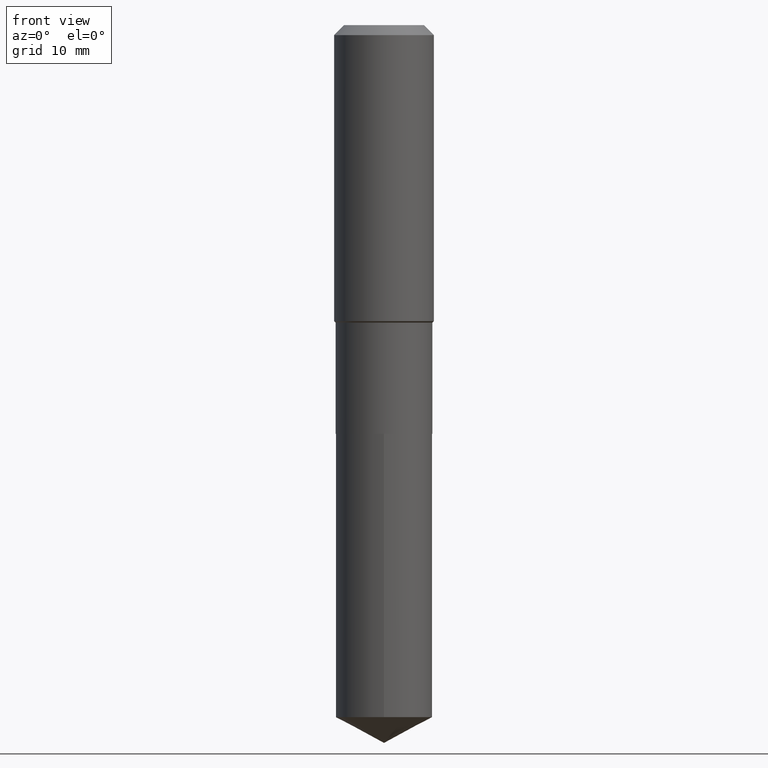
[diagram: clean part render]
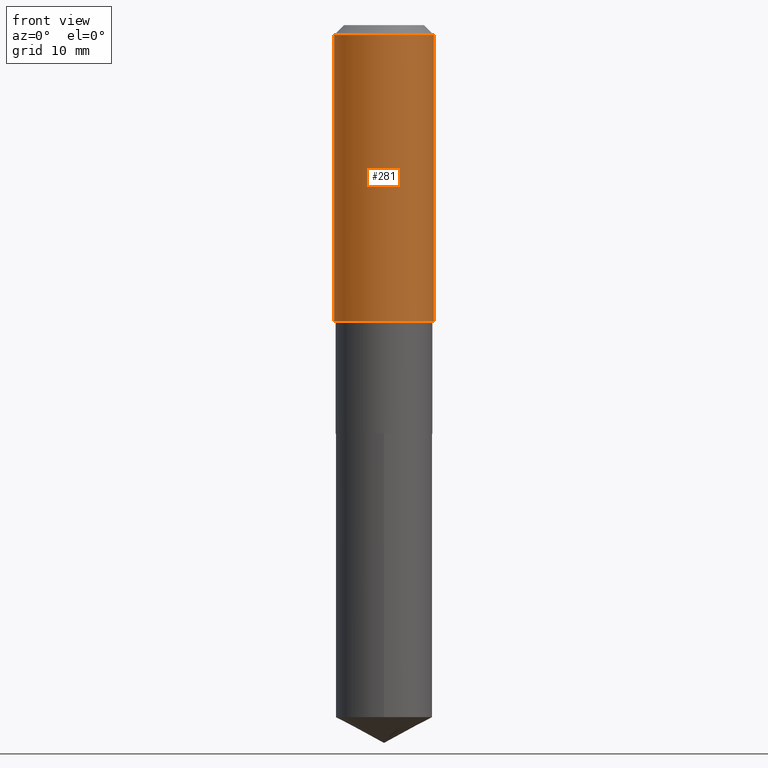
[diagram: same view with one face highlighted and labeled with its STEP entity id]
A machine part, front view. The second image highlights one B-rep face of the part: STEP entity #281.
In plain terms, the highlighted cylindrical surface (partial cylindrical patch) has radius 7.9997 mm, axis along (-0, 0, 1).
Its self-contained STEP definition (entity closure, byte-faithful):
#2 = VERTEX_POINT ( 'NONE', #220 ) ;
#12 = ORIENTED_EDGE ( 'NONE', *, *, #330, .F. ) ;
#20 = VECTOR ( 'NONE', #488, 39.37007874015748143 ) ;
#22 = DIRECTION ( 'NONE',  ( 1.000000000000000000, -6.982962677686265922E-15, 4.876176775795935232E-29 ) ) ;
#35 = VERTEX_POINT ( 'NONE', #244 ) ;
#63 = EDGE_CURVE ( 'NONE', #2, #35, #441, .T. ) ;
#69 = CYLINDRICAL_SURFACE ( 'NONE', #368, 0.3149500000000001743 ) ;
#92 = LINE ( 'NONE', #166, #163 ) ;
#99 = CARTESIAN_POINT ( 'NONE',  ( -0.3149500000000000077, -1.131669549400917718E-15, -0.06299000000000036514 ) ) ;
#125 = DIRECTION ( 'NONE',  ( -2.445468806185136877E-29, 3.491481338843145188E-15, 1.000000000000000000 ) ) ;
#142 = DIRECTION ( 'NONE',  ( 1.000000000000000000, -6.982962677686266711E-15, 0.000000000000000000 ) ) ;
#163 = VECTOR ( 'NONE', #125, 39.37007874015748143 ) ;
#166 = CARTESIAN_POINT ( 'NONE',  ( -0.3149500000000001743, 2.237854346276436774E-15, -1.549218606675783237E-29 ) ) ;
#180 = DIRECTION ( 'NONE',  ( -2.445468806185136597E-29, 3.491481338843145583E-15, 1.000000000000000000 ) ) ;
#184 = EDGE_CURVE ( 'NONE', #328, #336, #92, .T. ) ;
#190 = EDGE_LOOP ( 'NONE', ( #255, #363, #283, #12 ) ) ;
#206 = EDGE_CURVE ( 'NONE', #328, #2, #384, .T. ) ;
#214 = CIRCLE ( 'NONE', #240, 0.3149500000000000077 ) ;
#220 = CARTESIAN_POINT ( 'NONE',  ( 0.3149500000000002298, -8.718403477158269000E-15, -1.867149999999999421 ) ) ;
#231 = DIRECTION ( 'NONE',  ( -2.445468806185136597E-29, 3.491481338843145583E-15, 1.000000000000000000 ) ) ;
#240 = AXIS2_PLACEMENT_3D ( 'NONE', #313, #321, #142 ) ;
#244 = CARTESIAN_POINT ( 'NONE',  ( 0.3149500000000000077, -2.419212504871020909E-15, -0.06299000000000036514 ) ) ;
#255 = ORIENTED_EDGE ( 'NONE', *, *, #184, .F. ) ;
#256 = AXIS2_PLACEMENT_3D ( 'NONE', #267, #231, #378 ) ;
#267 = CARTESIAN_POINT ( 'NONE',  ( 4.566057081468576714E-29, -6.519119381820977551E-15, -1.867149999999999421 ) ) ;
#277 = CARTESIAN_POINT ( 'NONE',  ( -0.3149500000000002298, -4.281265035544540777E-15, -1.867149999999999421 ) ) ;
#281 = ADVANCED_FACE ( 'NONE', ( #436 ), #69, .T. ) ;
#283 = ORIENTED_EDGE ( 'NONE', *, *, #63, .T. ) ;
#313 = CARTESIAN_POINT ( 'NONE',  ( 1.540400801016026329E-30, -2.199284095337310135E-16, -0.06299000000000036514 ) ) ;
#321 = DIRECTION ( 'NONE',  ( -2.445468806185136597E-29, 3.491481338843145583E-15, 1.000000000000000000 ) ) ;
#325 = CARTESIAN_POINT ( 'NONE',  ( 0.3149500000000001743, -2.199284095337290660E-15, 1.535751875536930690E-29 ) ) ;
#328 = VERTEX_POINT ( 'NONE', #277 ) ;
#330 = EDGE_CURVE ( 'NONE', #336, #35, #214, .T. ) ;
#336 = VERTEX_POINT ( 'NONE', #99 ) ;
#353 = CARTESIAN_POINT ( 'NONE',  ( 0.000000000000000000, 0.000000000000000000, 0.000000000000000000 ) ) ;
#363 = ORIENTED_EDGE ( 'NONE', *, *, #206, .T. ) ;
#368 = AXIS2_PLACEMENT_3D ( 'NONE', #353, #180, #22 ) ;
#378 = DIRECTION ( 'NONE',  ( 1.000000000000000000, -6.982962677686268288E-15, 0.000000000000000000 ) ) ;
#384 = CIRCLE ( 'NONE', #256, 0.3149500000000002298 ) ;
#436 = FACE_OUTER_BOUND ( 'NONE', #190, .T. ) ;
#441 = LINE ( 'NONE', #325, #20 ) ;
#488 = DIRECTION ( 'NONE',  ( -2.445468806185136877E-29, 3.491481338843145188E-15, 1.000000000000000000 ) ) ;